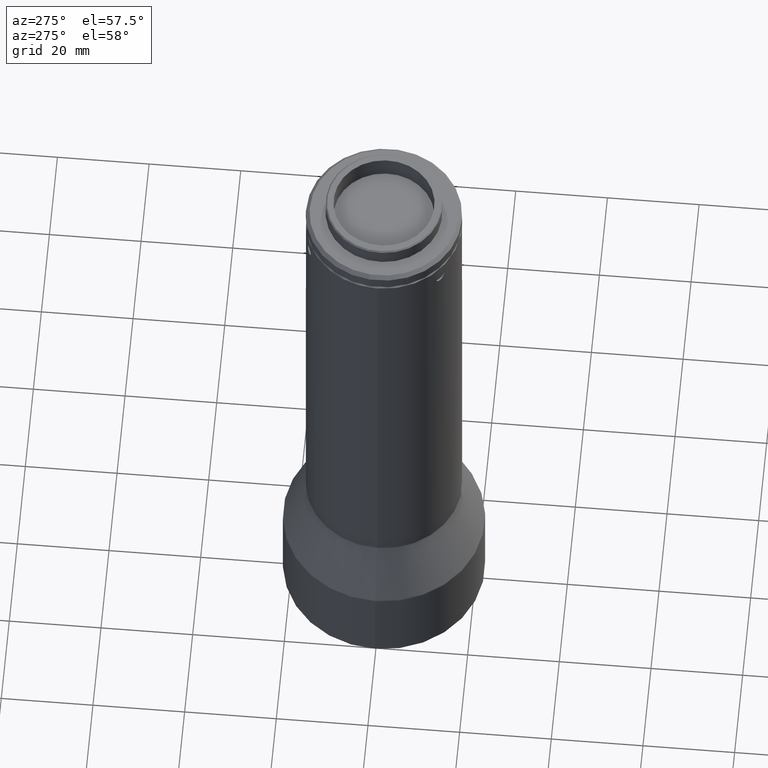
[diagram: clean part render]
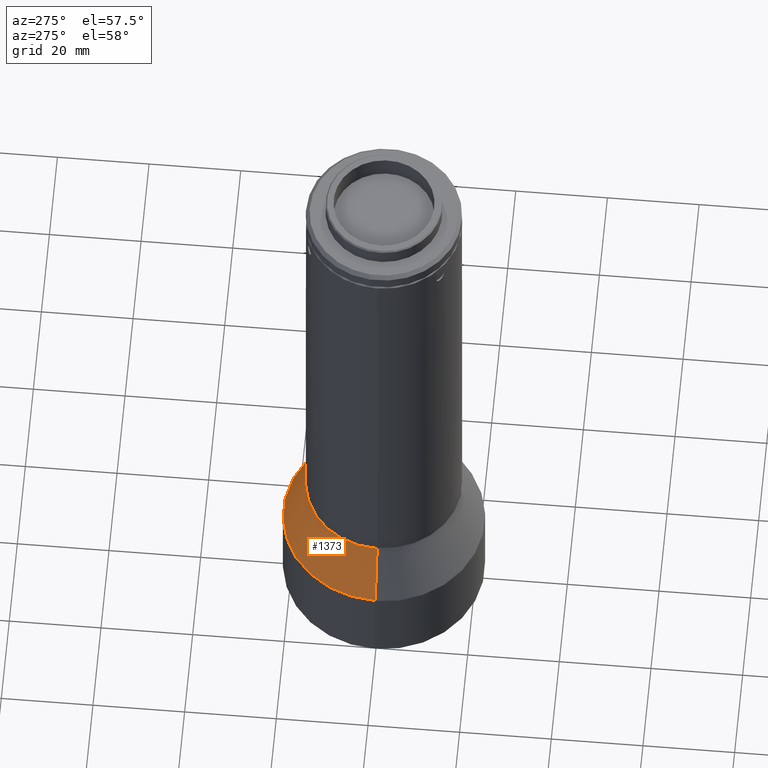
[diagram: same view with one face highlighted and labeled with its STEP entity id]
A machine part, auxiliary view. The second image highlights one B-rep face of the part: STEP entity #1373.
In plain terms, the highlighted conical surface has half-angle 20 deg.
Its self-contained STEP definition (entity closure, byte-faithful):
#95 = AXIS2_PLACEMENT_3D ( 'NONE', #1028, #1446, #494 ) ;
#115 = CARTESIAN_POINT ( 'NONE',  ( -17.06030737921410200, -1.170048767676412000E-015, 0.1656153400936672100 ) ) ;
#189 = ORIENTED_EDGE ( 'NONE', *, *, #928, .F. ) ;
#214 = CONICAL_SURFACE ( 'NONE', #413, 22.00000000000000000, 0.3490658503988599600 ) ;
#278 = CIRCLE ( 'NONE', #432, 21.93969262078590900 ) ;
#284 = CARTESIAN_POINT ( 'NONE',  ( 17.06030737921408400, 1.087138656158845300E-014, 0.1656153400936403700 ) ) ;
#290 = CARTESIAN_POINT ( 'NONE',  ( -21.93969262078592300, 5.233016753995189000E-015, -13.24038543194528100 ) ) ;
#324 = CARTESIAN_POINT ( 'NONE',  ( -1.826885839415315000E-014, 8.888903442974050500E-015, -13.40607859456249800 ) ) ;
#337 = DIRECTION ( 'NONE',  ( 1.000000000000000000, 1.665334536937734600E-016, -7.906781129345954100E-016 ) ) ;
#413 = AXIS2_PLACEMENT_3D ( 'NONE', #324, #1046, #628 ) ;
#432 = AXIS2_PLACEMENT_3D ( 'NONE', #748, #1718, #337 ) ;
#488 = CARTESIAN_POINT ( 'NONE',  ( -22.00000000000001800, 5.225167461711034700E-015, -13.40607859456248000 ) ) ;
#494 = DIRECTION ( 'NONE',  ( -1.000000000000000000, -1.665334536937734600E-016, 7.864454951647060800E-016 ) ) ;
#508 = CARTESIAN_POINT ( 'NONE',  ( 21.99999999999998200, 1.524686238236124200E-014, -13.40607859456251600 ) ) ;
#522 = EDGE_CURVE ( 'NONE', #1563, #674, #1514, .T. ) ;
#551 = VERTEX_POINT ( 'NONE', #115 ) ;
#604 = ORIENTED_EDGE ( 'NONE', *, *, #522, .T. ) ;
#626 = VECTOR ( 'NONE', #1181, 1000.000000000000100 ) ;
#628 = DIRECTION ( 'NONE',  ( -1.000000000000000000, -1.665334536937734600E-016, 7.885106708985487100E-016 ) ) ;
#674 = VERTEX_POINT ( 'NONE', #1394 ) ;
#720 = FACE_OUTER_BOUND ( 'NONE', #1764, .T. ) ;
#748 = CARTESIAN_POINT ( 'NONE',  ( -1.813860110465981600E-014, 8.800782771183575800E-015, -13.24038543194529900 ) ) ;
#928 = EDGE_CURVE ( 'NONE', #551, #1242, #1418, .T. ) ;
#1028 = CARTESIAN_POINT ( 'NONE',  ( -7.599666993385231300E-015, 1.671063141261480100E-015, 0.1656153400936538100 ) ) ;
#1038 = CIRCLE ( 'NONE', #95, 17.06030737921409500 ) ;
#1046 = DIRECTION ( 'NONE',  ( -7.861355739480307100E-016, 5.318304654131179000E-016, -1.000000000000000000 ) ) ;
#1172 = ORIENTED_EDGE ( 'NONE', *, *, #1788, .T. ) ;
#1181 = DIRECTION ( 'NONE',  ( -0.3420201433256638800, 4.427993681569811400E-016, -0.9396926207859100900 ) ) ;
#1242 = VERTEX_POINT ( 'NONE', #290 ) ;
#1248 = VECTOR ( 'NONE', #1472, 1000.000000000000000 ) ;
#1355 = EDGE_CURVE ( 'NONE', #551, #1563, #1038, .T. ) ;
#1364 = ORIENTED_EDGE ( 'NONE', *, *, #1355, .T. ) ;
#1373 = ADVANCED_FACE ( 'NONE', ( #720 ), #214, .T. ) ;
#1394 = CARTESIAN_POINT ( 'NONE',  ( 21.93969262078588800, 1.524097571655569900E-014, -13.24038543194531700 ) ) ;
#1418 = LINE ( 'NONE', #488, #626 ) ;
#1446 = DIRECTION ( 'NONE',  ( -7.861355739480307100E-016, 5.318304654131179000E-016, -1.000000000000000000 ) ) ;
#1472 = DIRECTION ( 'NONE',  ( 0.3420201433256625000, 5.986003469354746100E-016, -0.9396926207859106500 ) ) ;
#1514 = LINE ( 'NONE', #508, #1248 ) ;
#1563 = VERTEX_POINT ( 'NONE', #284 ) ;
#1718 = DIRECTION ( 'NONE',  ( 7.861355739480307100E-016, -5.318304654131179000E-016, 1.000000000000000000 ) ) ;
#1764 = EDGE_LOOP ( 'NONE', ( #1364, #604, #1172, #189 ) ) ;
#1788 = EDGE_CURVE ( 'NONE', #674, #1242, #278, .T. ) ;